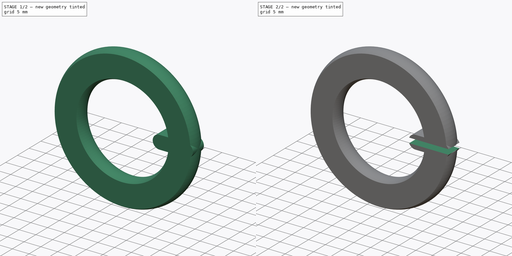
[diagram: build sequence overview — one tinted view per stage of 2, left to right]
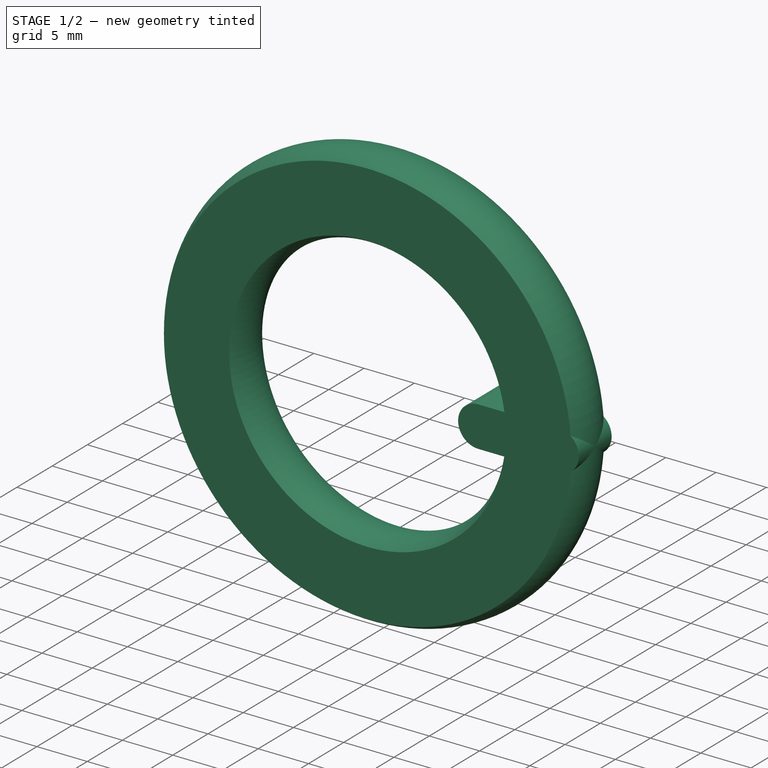
[diagram: stage 1 of 2 — iso view after this stage's code; geometry added in this stage tinted green]
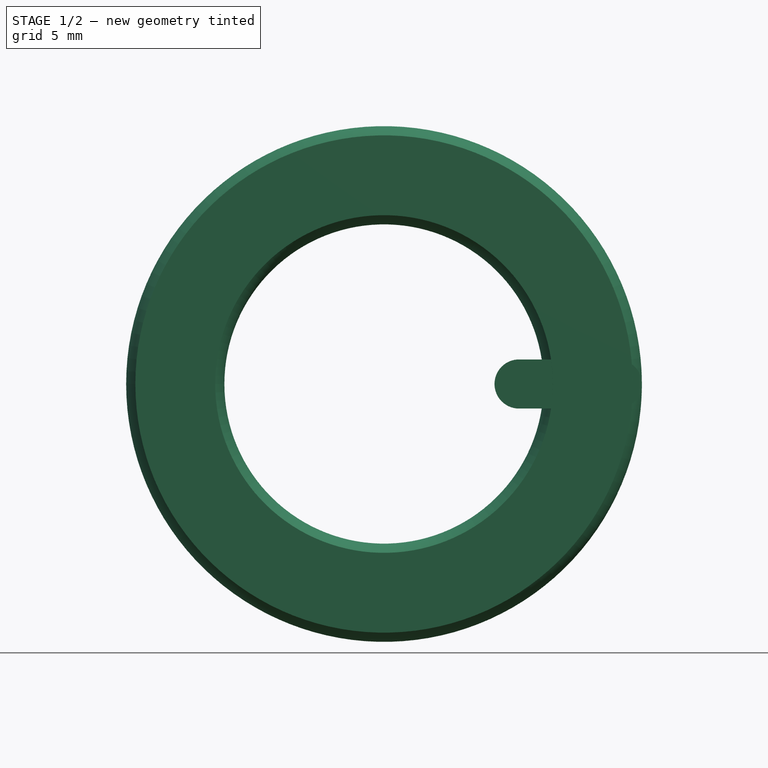
[diagram: stage 1 of 2 — front view after this stage's code; geometry added in this stage tinted green]
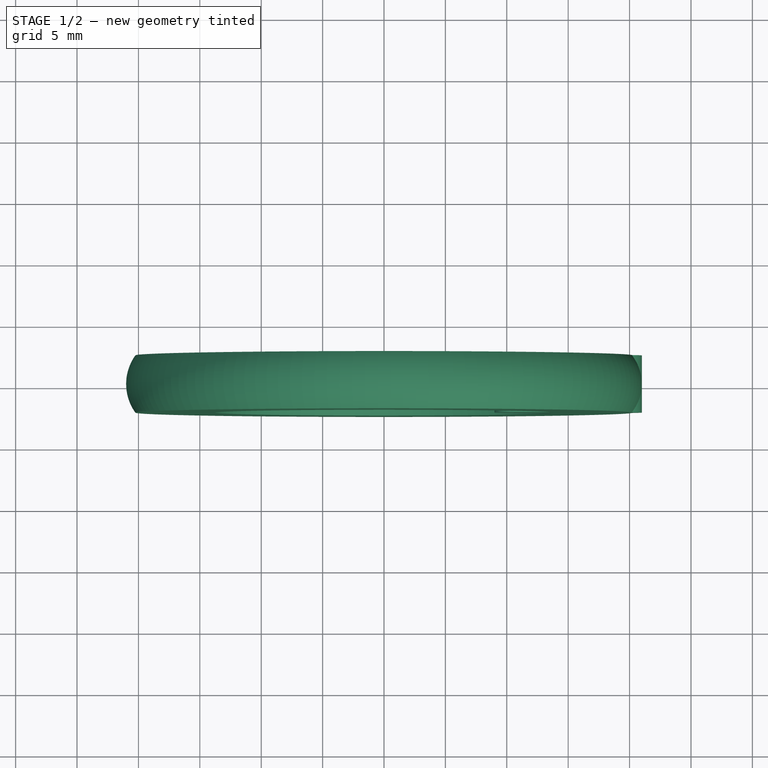
[diagram: stage 1 of 2 — top view after this stage's code; geometry added in this stage tinted green]
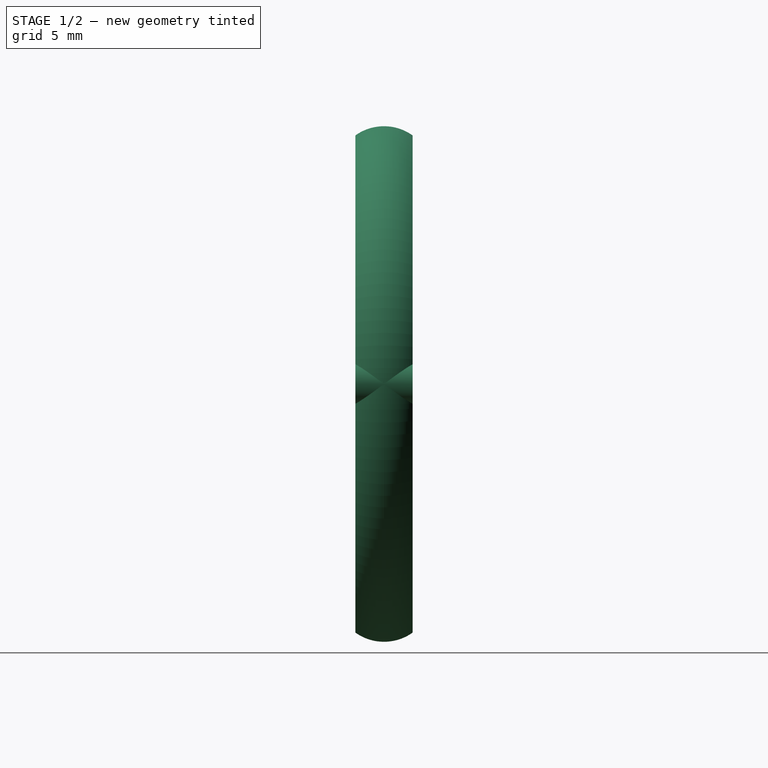
[diagram: stage 1 of 2 — right view after this stage's code; geometry added in this stage tinted green]
FCSTD DOCUMENT  (FreeCAD 0.20R29177 (Git))
Label: hanger
License: All rights reserved
LicenseURL: http://en.wikipedia.org/wiki/All_rights_reserved
objects: Sketcher::SketchObject×3, PartDesign::Revolution×1, PartDesign::Pad×1, PartDesign::Pocket×1, PartDesign::Body×1
note: 10 computed .brp shape members not serialized (recipe doc carries the construction recipe); baked Part::Feature solids carry a one-line shape summary decoded from their .brp

FEATURE [Sketcher::SketchObject] Sketch
  FullyConstrained = true
  MapMode = 5
  Support = -> [XY_Plane]
  sketch-geometry (6):
    g0: ArcOfCircle CenterX=17 CenterY=0 CenterZ=0 NormalX=0 NormalY=0 NormalZ=1 AngleXU=0 Radius=4 StartAngle=5.66082 EndAngle=6.90555
    g1: LineSegment StartX=13.75 StartY=2.33184 StartZ=0 EndX=20.25 EndY=2.33184 EndZ=0
    g2: LineSegment StartX=20.25 StartY=-2.33184 StartZ=0 EndX=13.75 EndY=-2.33184 EndZ=0
    g3: ArcOfCircle CenterX=17 CenterY=0 CenterZ=0 NormalX=0 NormalY=0 NormalZ=1 AngleXU=0 Radius=4 StartAngle=2.51922 EndAngle=3.76396
    g4: LineSegment StartX=13 StartY=0 StartZ=0 EndX=21 EndY=0 EndZ=0
    g5: LineSegment StartX=13.75 StartY=2.33184 StartZ=0 EndX=13.75 EndY=-2.33184 EndZ=0
  constraints (19):
    c: Radius(g0) = 4
    c: Horizontal(g1)
    c: Horizontal(g2)
    c: Coincident(g0,g2)
    c: Equal(g0,g3)
    c: Coincident(g0,g1)
    c: Coincident(g0,g3)
    c: Coincident(g1,g3)
    c: Coincident(g2,g3)
    c: PointOnObject(g0,g-1)
    c: DistanceX(g-1,g0) = 17
    c: Equal(g1,g2)
    c: DistanceX(g1,g1) = 6.5
    c: PointOnObject(g4,g-1)
    c: Horizontal(g4)
    c: PointOnObject(g4,g3)
    c: PointOnObject(g4,g0)
    c: Coincident(g5,g1)
    c: Coincident(g5,g2)
FEATURE [PartDesign::Revolution] Revolution
  Angle = 360
  Axis = (0,1,0)
  Base = (0,0,0)
  Profile = -> Sketch
  ReferenceAxis = -> Sketch [V_Axis]
  Reversed = true
FEATURE [Sketcher::SketchObject] Sketch001
  FullyConstrained = true
  MapMode = 5
  Placement = pos=(0,0,0) rot=(1,0,0;1.5708rad)
  Support = -> [XZ_Plane]
  sketch-geometry (4):
    g0: ArcOfCircle CenterX=11 CenterY=0 CenterZ=0 NormalX=0 NormalY=0 NormalZ=1 AngleXU=0 Radius=2 StartAngle=1.5708 EndAngle=4.71239
    g1: ArcOfCircle CenterX=19 CenterY=0 CenterZ=0 NormalX=0 NormalY=0 NormalZ=1 AngleXU=0 Radius=2 StartAngle=4.71239 EndAngle=7.85398
    g2: LineSegment StartX=11 StartY=-2 StartZ=0 EndX=19 EndY=-2 EndZ=0
    g3: LineSegment StartX=19 StartY=2 StartZ=0 EndX=11 EndY=2 EndZ=0
  constraints (10):
    c: Tangent(g0,g2) = -1.5708
    c: Tangent(g2,g1) = -1.5708
    c: Tangent(g1,g3) = -1.5708
    c: Tangent(g3,g0) = -1.5708
    c: Equal(g0,g1)
    c: PointOnObject(g0,g-1)
    c: PointOnObject(g1,g-1)
    c: Radius(g0) = 2
    c: DistanceX(g3,g3) = 8
    c: DistanceX(g-1,g0) = 11
FEATURE [PartDesign::Pad] Pad
  BaseFeature = -> Revolution
  Direction = (0,-1,-2e-16)
  Length = 4.66
  Length2 = 10
  Midplane = true
  Profile = -> Sketch001
  ReferenceAxis = -> Sketch001 [N_Axis]
  Type = 0
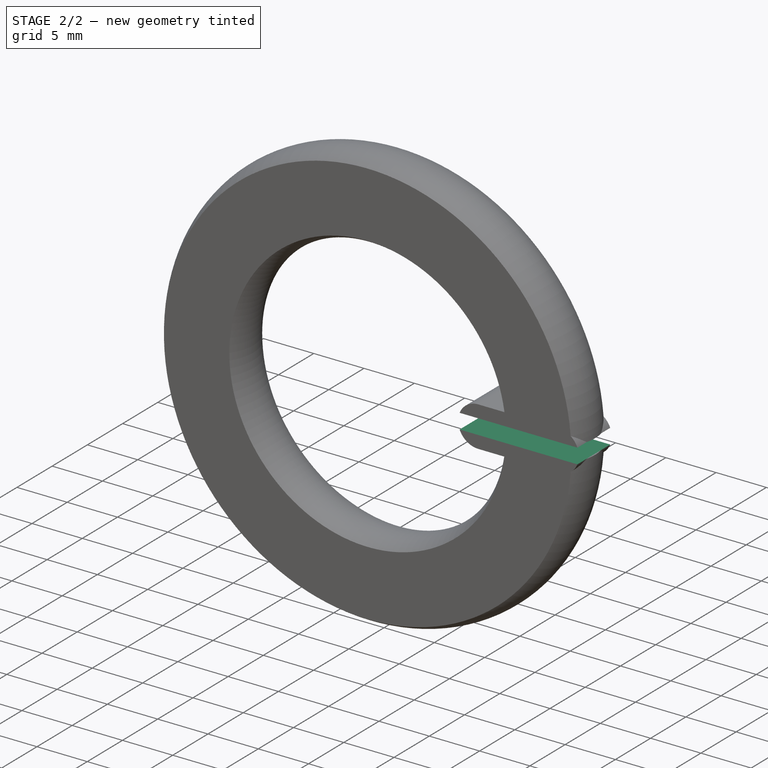
[diagram: stage 2 of 2 — iso view after this stage's code; geometry added in this stage tinted green]
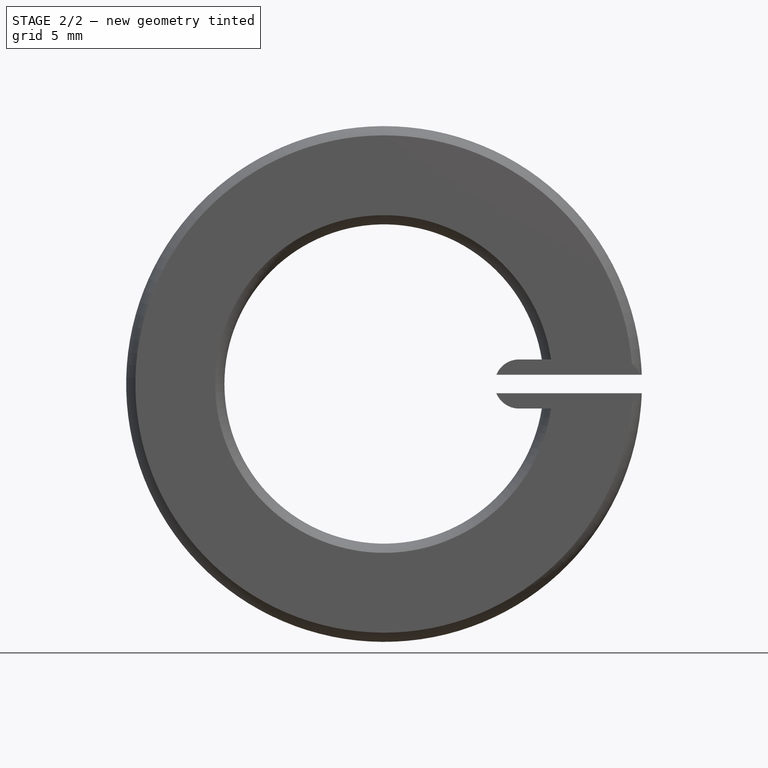
[diagram: stage 2 of 2 — front view after this stage's code; geometry added in this stage tinted green]
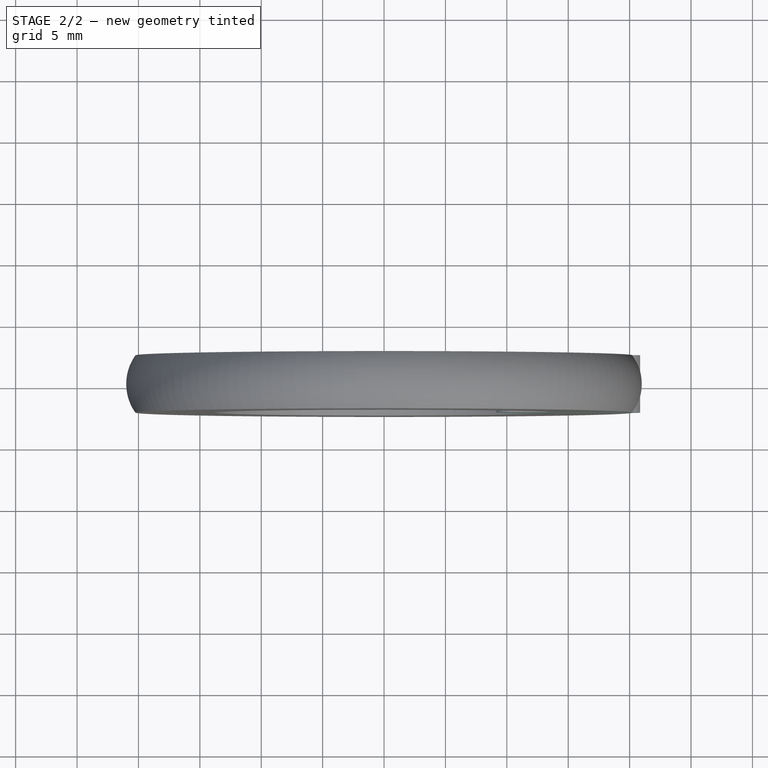
[diagram: stage 2 of 2 — top view after this stage's code; geometry added in this stage tinted green]
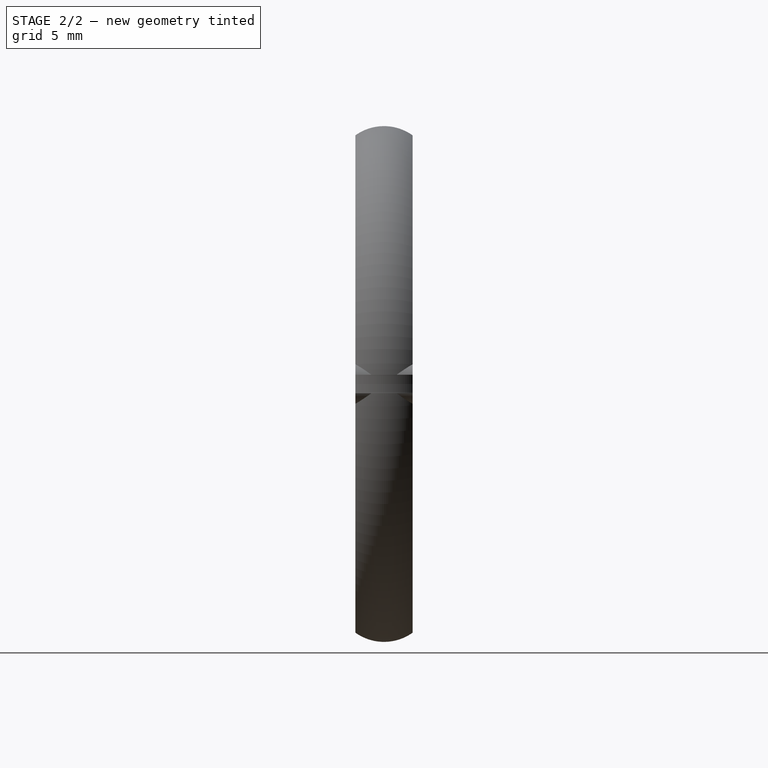
[diagram: stage 2 of 2 — right view after this stage's code; geometry added in this stage tinted green]
FEATURE [Sketcher::SketchObject] Sketch002
  FullyConstrained = false
  MapMode = 5
  Placement = pos=(0,0,0) rot=(1,0,0;1.5708rad)
  Support = -> [XZ_Plane]
  sketch-geometry (4):
    g0: LineSegment StartX=0 StartY=0.75 StartZ=0 EndX=21.8534 EndY=0.75 EndZ=0
    g1: LineSegment StartX=21.8534 StartY=0.75 StartZ=0 EndX=21.8534 EndY=-0.75 EndZ=0
    g2: LineSegment StartX=21.8534 StartY=-0.75 StartZ=0 EndX=0 EndY=-0.75 EndZ=0
    g3: LineSegment StartX=0 StartY=-0.75 StartZ=0 EndX=0 EndY=0.75 EndZ=0
  constraints (10):
    c: Coincident(g0,g1)
    c: Coincident(g1,g2)
    c: Coincident(g2,g3)
    c: Coincident(g3,g0)
    c: Horizontal(g0)
    c: Horizontal(g2)
    c: Vertical(g1)
    c: Vertical(g3)
    c: DistanceY(g1,g1) = 1.5
    c: Symmetric(g0,g2,g-1)
FEATURE [PartDesign::Pocket] Pocket
  BaseFeature = -> Pad
  Direction = (0,1,2e-16)
  Length = 5
  Length2 = 5
  Midplane = true
  Profile = -> Sketch002
  ReferenceAxis = -> Sketch002 [N_Axis]
  Type = 0
FEATURE [PartDesign::Body] Body
  Group = -> [Sketch,Revolution,Sketch001,Pad,Sketch002,Pocket]
  Origin = -> Origin
  Tip = -> Pocket
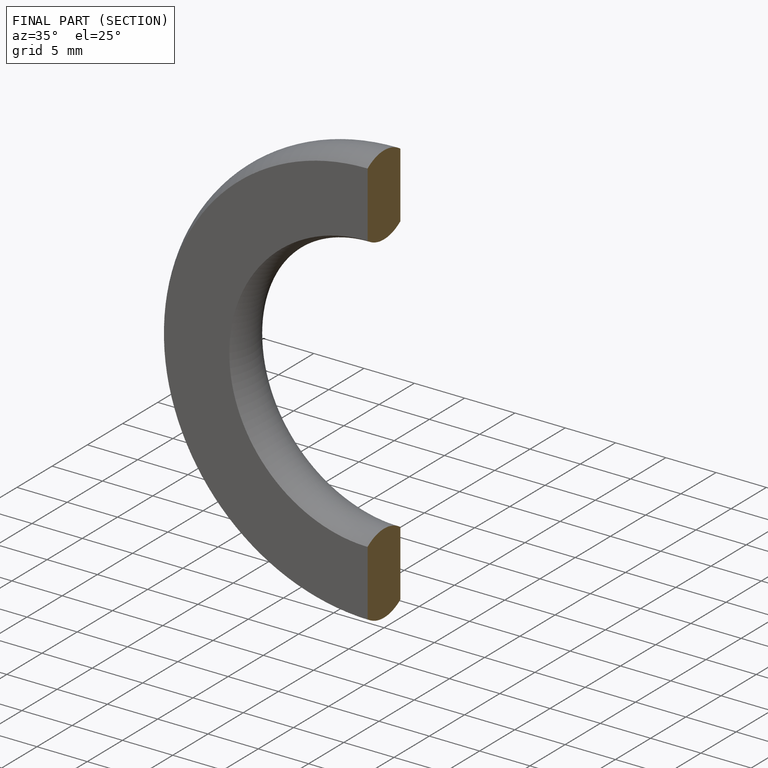
[diagram: finished part — half-section view (interior)]
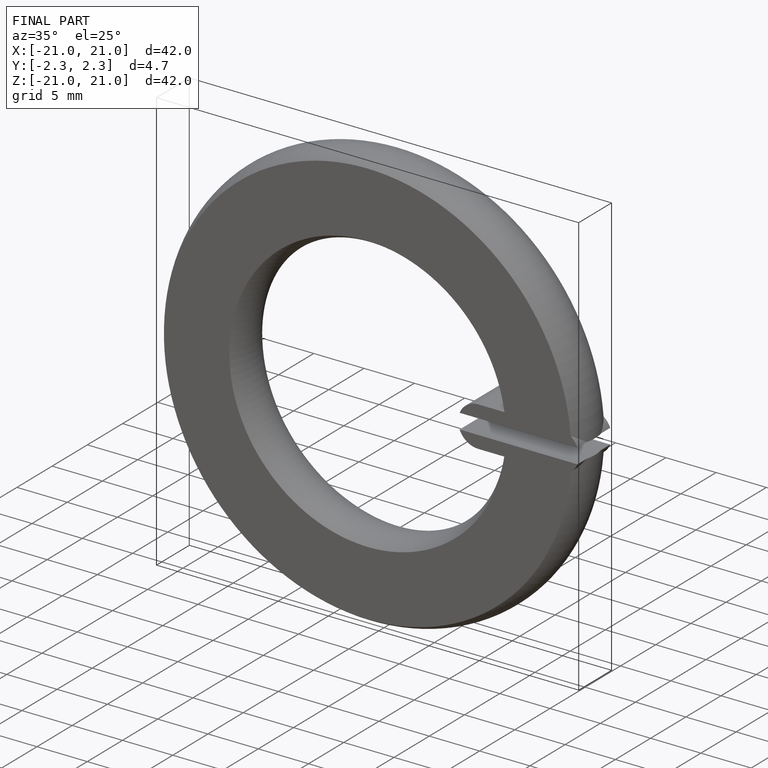
[diagram: finished part — iso view with bounding-box wireframe]
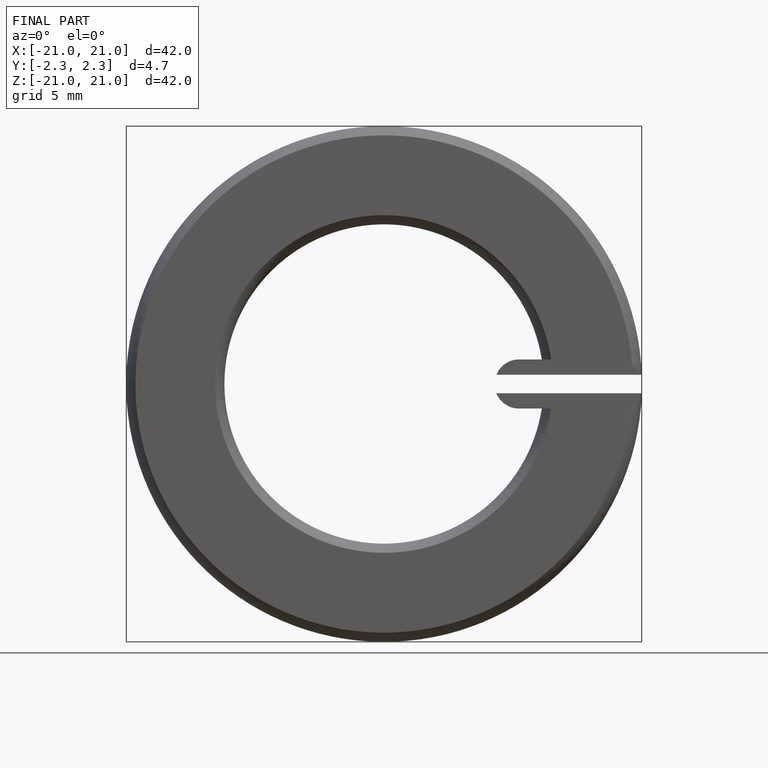
[diagram: finished part — front view with bounding-box wireframe]
